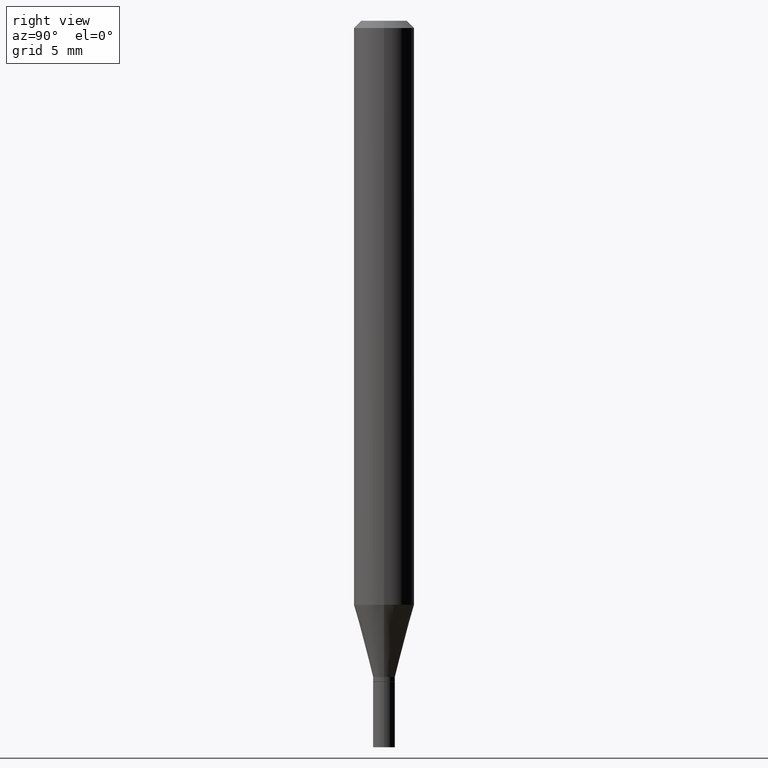
[diagram: clean part render]
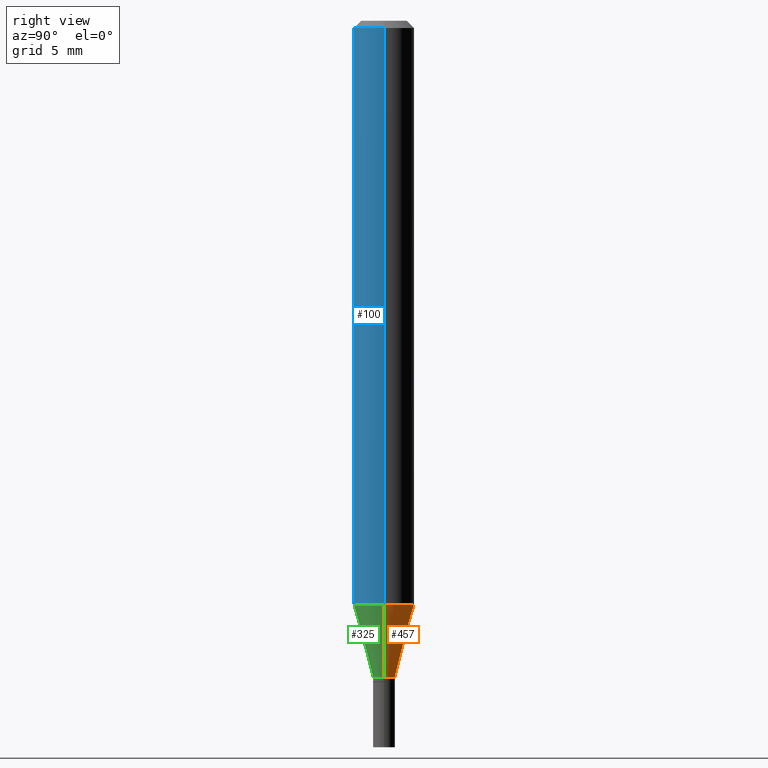
[diagram: same view with three faces highlighted in distinct colors, each labeled with its STEP entity id]
A machine part, right view with three faces highlighted in distinct colors.
Their STEP definitions:

[orange] entity #457 — the highlighted conical surface has half-angle 15 deg.
#1 = CARTESIAN_POINT ( 'NONE',  ( 2.948545679060551070E-29, -4.209741784122813615E-15, -1.205717967697245152 ) ) ;
#2 = CARTESIAN_POINT ( 'NONE',  ( 0.02249999999999991937, -4.888073874380403263E-15, -1.355000000000000204 ) ) ;
#44 = VECTOR ( 'NONE', #72, 39.37007874015747433 ) ;
#59 = AXIS2_PLACEMENT_3D ( 'NONE', #1, #268, #63 ) ;
#63 = DIRECTION ( 'NONE',  ( 1.000000000000000000, -6.982962677686270655E-15, 0.000000000000000000 ) ) ;
#72 = DIRECTION ( 'NONE',  ( 0.2588190451025213501, 1.565188264969621968E-15, 0.9659258262890682012 ) ) ;
#75 = EDGE_LOOP ( 'NONE', ( #242, #94, #329, #374 ) ) ;
#83 = CARTESIAN_POINT ( 'NONE',  ( -0.02249999999999991937, -4.168368836429595565E-15, -1.355000000000000204 ) ) ;
#94 = ORIENTED_EDGE ( 'NONE', *, *, #102, .T. ) ;
#96 = AXIS2_PLACEMENT_3D ( 'NONE', #336, #114, #191 ) ;
#102 = EDGE_CURVE ( 'NONE', #112, #427, #117, .T. ) ;
#112 = VERTEX_POINT ( 'NONE', #83 ) ;
#114 = DIRECTION ( 'NONE',  ( -2.445468806185136597E-29, 3.491481338843145583E-15, 1.000000000000000000 ) ) ;
#117 = LINE ( 'NONE', #248, #386 ) ;
#151 = DIRECTION ( 'NONE',  ( 1.000000000000000000, -6.982962677686249356E-15, 0.000000000000000000 ) ) ;
#153 = EDGE_CURVE ( 'NONE', #375, #427, #358, .T. ) ;
#160 = AXIS2_PLACEMENT_3D ( 'NONE', #271, #251, #151 ) ;
#171 = CARTESIAN_POINT ( 'NONE',  ( 0.02249999999999991937, -4.888073874380403263E-15, -1.355000000000000204 ) ) ;
#181 = CONICAL_SURFACE ( 'NONE', #96, 0.02249999999999991937, 0.2617993877991500740 ) ;
#191 = DIRECTION ( 'NONE',  ( 1.000000000000000000, -6.982962677686249356E-15, 0.000000000000000000 ) ) ;
#217 = CIRCLE ( 'NONE', #160, 0.02249999999999991937 ) ;
#220 = EDGE_CURVE ( 'NONE', #272, #112, #217, .T. ) ;
#235 = CARTESIAN_POINT ( 'NONE',  ( -0.06250000000000001388, -3.765652574272750998E-15, -1.205717967697245152 ) ) ;
#242 = ORIENTED_EDGE ( 'NONE', *, *, #220, .T. ) ;
#248 = CARTESIAN_POINT ( 'NONE',  ( -0.02249999999999991937, -4.571085098586440920E-15, -1.355000000000000204 ) ) ;
#251 = DIRECTION ( 'NONE',  ( -2.445468806185136597E-29, 3.491481338843145583E-15, 1.000000000000000000 ) ) ;
#268 = DIRECTION ( 'NONE',  ( -2.445468806185136597E-29, 3.491481338843145583E-15, 1.000000000000000000 ) ) ;
#271 = CARTESIAN_POINT ( 'NONE',  ( 3.313610232380860851E-29, -4.730957214132463209E-15, -1.355000000000000204 ) ) ;
#272 = VERTEX_POINT ( 'NONE', #2 ) ;
#281 = CARTESIAN_POINT ( 'NONE',  ( 0.06250000000000001388, -4.646176951478205284E-15, -1.205717967697245152 ) ) ;
#301 = DIRECTION ( 'NONE',  ( -0.2588190451025213501, 5.211531920934551042E-15, 0.9659258262890682012 ) ) ;
#317 = EDGE_CURVE ( 'NONE', #272, #375, #430, .T. ) ;
#329 = ORIENTED_EDGE ( 'NONE', *, *, #153, .F. ) ;
#336 = CARTESIAN_POINT ( 'NONE',  ( 3.313610232380860851E-29, -4.730957214132463209E-15, -1.355000000000000204 ) ) ;
#341 = FACE_OUTER_BOUND ( 'NONE', #75, .T. ) ;
#358 = CIRCLE ( 'NONE', #59, 0.06250000000000000000 ) ;
#374 = ORIENTED_EDGE ( 'NONE', *, *, #317, .F. ) ;
#375 = VERTEX_POINT ( 'NONE', #281 ) ;
#386 = VECTOR ( 'NONE', #301, 39.37007874015747433 ) ;
#427 = VERTEX_POINT ( 'NONE', #235 ) ;
#430 = LINE ( 'NONE', #171, #44 ) ;
#457 = ADVANCED_FACE ( 'NONE', ( #341 ), #181, .T. ) ;

[blue] entity #100 — the highlighted cylindrical surface (edge-blend (fillet) strip) has radius 1.5875 mm, axis along (-0, 0, 1).
#6 = ORIENTED_EDGE ( 'NONE', *, *, #122, .F. ) ;
#10 = EDGE_CURVE ( 'NONE', #427, #78, #17, .T. ) ;
#14 = ORIENTED_EDGE ( 'NONE', *, *, #357, .T. ) ;
#17 = LINE ( 'NONE', #403, #249 ) ;
#19 = CARTESIAN_POINT ( 'NONE',  ( 3.668203209277705088E-31, -5.237222008264718399E-17, -0.01499999999999999944 ) ) ;
#47 = EDGE_LOOP ( 'NONE', ( #219, #14, #280, #6 ) ) ;
#56 = DIRECTION ( 'NONE',  ( -2.445468806185136877E-29, 3.491481338843145188E-15, 1.000000000000000000 ) ) ;
#64 = LINE ( 'NONE', #461, #294 ) ;
#74 = AXIS2_PLACEMENT_3D ( 'NONE', #144, #101, #230 ) ;
#78 = VERTEX_POINT ( 'NONE', #116 ) ;
#100 = ADVANCED_FACE ( 'NONE', ( #184 ), #158, .T. ) ;
#101 = DIRECTION ( 'NONE',  ( -2.445468806185136597E-29, 3.491481338843145583E-15, 1.000000000000000000 ) ) ;
#116 = CARTESIAN_POINT ( 'NONE',  ( -0.06250000000000000000, -1.686967792252667731E-15, -0.01499999999999999944 ) ) ;
#122 = EDGE_CURVE ( 'NONE', #78, #286, #312, .T. ) ;
#144 = CARTESIAN_POINT ( 'NONE',  ( 2.948545679060551070E-29, -4.209741784122813615E-15, -1.205717967697245152 ) ) ;
#155 = DIRECTION ( 'NONE',  ( 1.000000000000000000, -6.982962677686266711E-15, 0.000000000000000000 ) ) ;
#158 = CYLINDRICAL_SURFACE ( 'NONE', #224, 0.06250000000000000000 ) ;
#162 = EDGE_CURVE ( 'NONE', #375, #286, #64, .T. ) ;
#180 = AXIS2_PLACEMENT_3D ( 'NONE', #19, #214, #155 ) ;
#184 = FACE_OUTER_BOUND ( 'NONE', #47, .T. ) ;
#187 = DIRECTION ( 'NONE',  ( -2.445468806185136597E-29, 3.491481338843145583E-15, 1.000000000000000000 ) ) ;
#214 = DIRECTION ( 'NONE',  ( -2.445468806185136597E-29, 3.491481338843145583E-15, 1.000000000000000000 ) ) ;
#219 = ORIENTED_EDGE ( 'NONE', *, *, #10, .F. ) ;
#224 = AXIS2_PLACEMENT_3D ( 'NONE', #409, #187, #292 ) ;
#230 = DIRECTION ( 'NONE',  ( 1.000000000000000000, -6.982962677686270655E-15, 0.000000000000000000 ) ) ;
#235 = CARTESIAN_POINT ( 'NONE',  ( -0.06250000000000001388, -3.765652574272750998E-15, -1.205717967697245152 ) ) ;
#249 = VECTOR ( 'NONE', #56, 39.37007874015748143 ) ;
#280 = ORIENTED_EDGE ( 'NONE', *, *, #162, .T. ) ;
#281 = CARTESIAN_POINT ( 'NONE',  ( 0.06250000000000001388, -4.646176951478205284E-15, -1.205717967697245152 ) ) ;
#286 = VERTEX_POINT ( 'NONE', #326 ) ;
#292 = DIRECTION ( 'NONE',  ( 1.000000000000000000, -6.982962677686266711E-15, 4.876176775795935793E-29 ) ) ;
#294 = VECTOR ( 'NONE', #316, 39.37007874015748143 ) ;
#312 = CIRCLE ( 'NONE', #180, 0.06250000000000000000 ) ;
#316 = DIRECTION ( 'NONE',  ( -2.445468806185136877E-29, 3.491481338843145188E-15, 1.000000000000000000 ) ) ;
#326 = CARTESIAN_POINT ( 'NONE',  ( 0.06250000000000000000, -4.888073874380388472E-16, -0.01499999999999999944 ) ) ;
#357 = EDGE_CURVE ( 'NONE', #427, #375, #413, .T. ) ;
#375 = VERTEX_POINT ( 'NONE', #281 ) ;
#403 = CARTESIAN_POINT ( 'NONE',  ( -0.06250000000000000000, 4.440892098500626162E-16, -3.074334431409316114E-30 ) ) ;
#409 = CARTESIAN_POINT ( 'NONE',  ( 0.000000000000000000, 0.000000000000000000, 0.000000000000000000 ) ) ;
#413 = CIRCLE ( 'NONE', #74, 0.06250000000000000000 ) ;
#427 = VERTEX_POINT ( 'NONE', #235 ) ;
#461 = CARTESIAN_POINT ( 'NONE',  ( 0.06250000000000000000, -4.364351673553916694E-16, 3.047610484872459871E-30 ) ) ;

[green] entity #325 — the highlighted conical surface has half-angle 15 deg.
#2 = CARTESIAN_POINT ( 'NONE',  ( 0.02249999999999991937, -4.888073874380403263E-15, -1.355000000000000204 ) ) ;
#16 = CARTESIAN_POINT ( 'NONE',  ( 3.313610232380860851E-29, -4.730957214132463209E-15, -1.355000000000000204 ) ) ;
#27 = AXIS2_PLACEMENT_3D ( 'NONE', #353, #429, #273 ) ;
#44 = VECTOR ( 'NONE', #72, 39.37007874015747433 ) ;
#66 = CIRCLE ( 'NONE', #132, 0.02249999999999991937 ) ;
#72 = DIRECTION ( 'NONE',  ( 0.2588190451025213501, 1.565188264969621968E-15, 0.9659258262890682012 ) ) ;
#74 = AXIS2_PLACEMENT_3D ( 'NONE', #144, #101, #230 ) ;
#83 = CARTESIAN_POINT ( 'NONE',  ( -0.02249999999999991937, -4.168368836429595565E-15, -1.355000000000000204 ) ) ;
#101 = DIRECTION ( 'NONE',  ( -2.445468806185136597E-29, 3.491481338843145583E-15, 1.000000000000000000 ) ) ;
#102 = EDGE_CURVE ( 'NONE', #112, #427, #117, .T. ) ;
#112 = VERTEX_POINT ( 'NONE', #83 ) ;
#117 = LINE ( 'NONE', #248, #386 ) ;
#132 = AXIS2_PLACEMENT_3D ( 'NONE', #16, #152, #378 ) ;
#144 = CARTESIAN_POINT ( 'NONE',  ( 2.948545679060551070E-29, -4.209741784122813615E-15, -1.205717967697245152 ) ) ;
#152 = DIRECTION ( 'NONE',  ( -2.445468806185136597E-29, 3.491481338843145583E-15, 1.000000000000000000 ) ) ;
#169 = ORIENTED_EDGE ( 'NONE', *, *, #254, .T. ) ;
#171 = CARTESIAN_POINT ( 'NONE',  ( 0.02249999999999991937, -4.888073874380403263E-15, -1.355000000000000204 ) ) ;
#208 = ORIENTED_EDGE ( 'NONE', *, *, #317, .T. ) ;
#215 = EDGE_LOOP ( 'NONE', ( #283, #169, #208, #244 ) ) ;
#230 = DIRECTION ( 'NONE',  ( 1.000000000000000000, -6.982962677686270655E-15, 0.000000000000000000 ) ) ;
#235 = CARTESIAN_POINT ( 'NONE',  ( -0.06250000000000001388, -3.765652574272750998E-15, -1.205717967697245152 ) ) ;
#244 = ORIENTED_EDGE ( 'NONE', *, *, #357, .F. ) ;
#248 = CARTESIAN_POINT ( 'NONE',  ( -0.02249999999999991937, -4.571085098586440920E-15, -1.355000000000000204 ) ) ;
#254 = EDGE_CURVE ( 'NONE', #112, #272, #66, .T. ) ;
#272 = VERTEX_POINT ( 'NONE', #2 ) ;
#273 = DIRECTION ( 'NONE',  ( 1.000000000000000000, -6.982962677686249356E-15, 0.000000000000000000 ) ) ;
#275 = CONICAL_SURFACE ( 'NONE', #27, 0.02249999999999991937, 0.2617993877991500740 ) ;
#281 = CARTESIAN_POINT ( 'NONE',  ( 0.06250000000000001388, -4.646176951478205284E-15, -1.205717967697245152 ) ) ;
#283 = ORIENTED_EDGE ( 'NONE', *, *, #102, .F. ) ;
#301 = DIRECTION ( 'NONE',  ( -0.2588190451025213501, 5.211531920934551042E-15, 0.9659258262890682012 ) ) ;
#317 = EDGE_CURVE ( 'NONE', #272, #375, #430, .T. ) ;
#325 = ADVANCED_FACE ( 'NONE', ( #355 ), #275, .T. ) ;
#353 = CARTESIAN_POINT ( 'NONE',  ( 3.313610232380860851E-29, -4.730957214132463209E-15, -1.355000000000000204 ) ) ;
#355 = FACE_OUTER_BOUND ( 'NONE', #215, .T. ) ;
#357 = EDGE_CURVE ( 'NONE', #427, #375, #413, .T. ) ;
#375 = VERTEX_POINT ( 'NONE', #281 ) ;
#378 = DIRECTION ( 'NONE',  ( 1.000000000000000000, -6.982962677686249356E-15, 0.000000000000000000 ) ) ;
#386 = VECTOR ( 'NONE', #301, 39.37007874015747433 ) ;
#413 = CIRCLE ( 'NONE', #74, 0.06250000000000000000 ) ;
#427 = VERTEX_POINT ( 'NONE', #235 ) ;
#429 = DIRECTION ( 'NONE',  ( -2.445468806185136597E-29, 3.491481338843145583E-15, 1.000000000000000000 ) ) ;
#430 = LINE ( 'NONE', #171, #44 ) ;